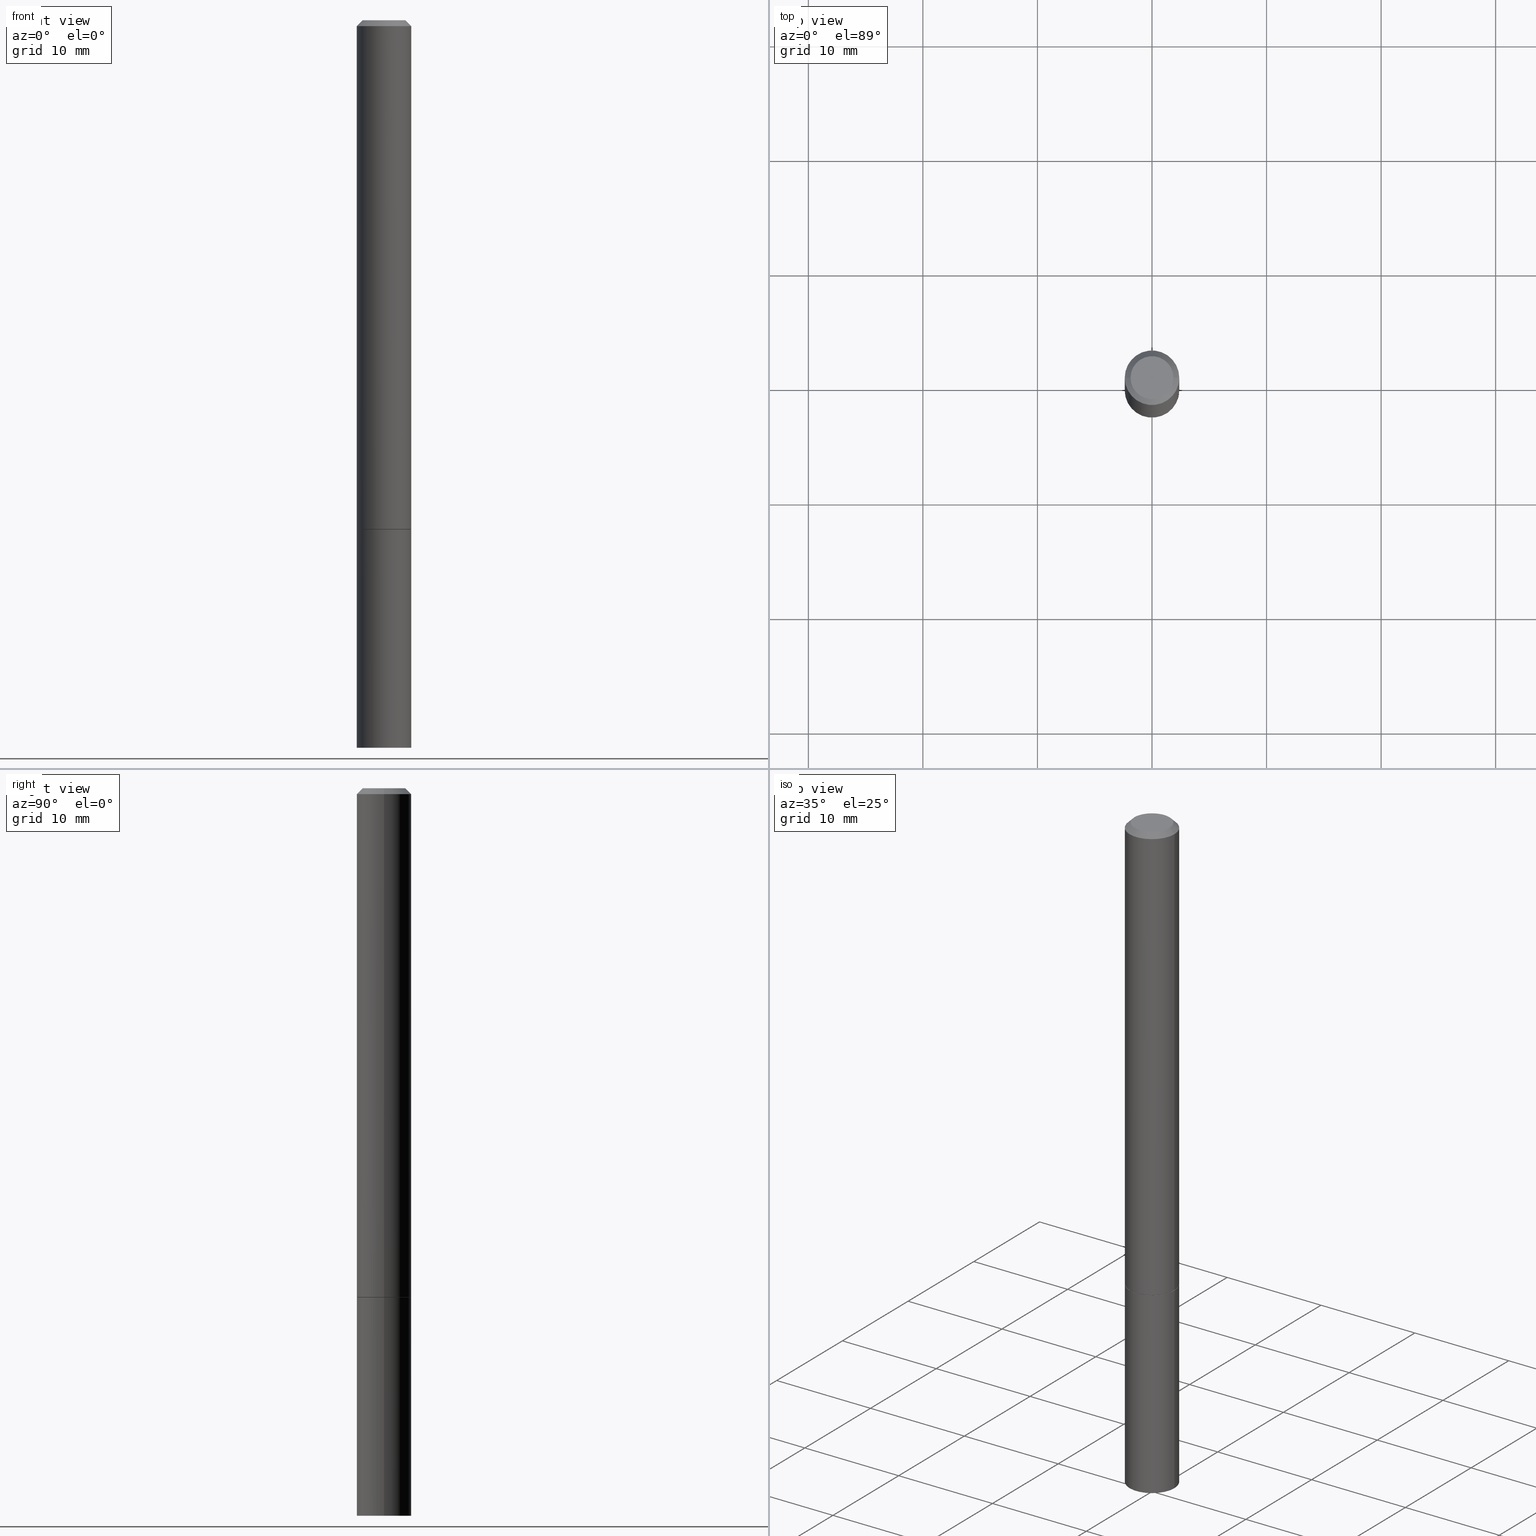
[diagram: canonical four-view strip — front | top / right | iso, engineering-drawing reading convention]
A machine part, canonical four-view strip (front | top / right | iso — engineering-drawing reading convention). The complete STEP part file that produces these views, byte-faithful:
ISO-10303-21;
HEADER;
FILE_DESCRIPTION (( 'STEP AP203' ),
    '1' );
FILE_NAME ('70472.STEP',
    '2024-02-29T02:25:45',
    ( '' ),
    ( '' ),
    'SwSTEP 2.0',
    'SolidWorks 2023',
    '' );
FILE_SCHEMA (( 'CONFIG_CONTROL_DESIGN' ));
ENDSEC;

DATA;
#1 = CARTESIAN_POINT ( 'NONE',  ( 0.09375000000000001388, -6.764745094008592175E-15, -1.750000000000000222 ) ) ;
#2 = FACE_OUTER_BOUND ( 'NONE', #3, .T. ) ;
#3 = EDGE_LOOP ( 'NONE', ( #201, #286, #263, #129 ) ) ;
#4 = COORDINATED_UNIVERSAL_TIME_OFFSET ( 5, 0, .BEHIND. ) ;
#5 = AXIS2_PLACEMENT_3D ( 'NONE', #363, #89, #87 ) ;
#6 = APPLICATION_PROTOCOL_DEFINITION ( 'international standard', 'config_control_design', 1994, #339 ) ;
#7 = CC_DESIGN_DATE_AND_TIME_ASSIGNMENT ( #328, #271, ( #164 ) ) ;
#8 = DATE_TIME_ROLE ( 'creation_date' ) ;
#9 = EDGE_CURVE ( 'NONE', #202, #32, #104, .T. ) ;
#10 = AXIS2_PLACEMENT_3D ( 'NONE', #168, #224, #234 ) ;
#11 = PLANE ( 'NONE',  #264 ) ;
#12 = EDGE_CURVE ( 'NONE', #248, #281, #296, .T. ) ;
#13 = ORIENTED_EDGE ( 'NONE', *, *, #36, .F. ) ;
#14 = EDGE_LOOP ( 'NONE', ( #166, #53 ) ) ;
#15 = LINE ( 'NONE', #103, #119 ) ;
#16 = DATE_AND_TIME ( #102, #30 ) ;
#17 = ORIENTED_EDGE ( 'NONE', *, *, #9, .T. ) ;
#18 = CALENDAR_DATE ( 2024, 28, 2 ) ;
#19 = DIRECTION ( 'NONE',  ( 2.438088387897960049E-29, -3.491481338843145188E-15, -1.000000000000000000 ) ) ;
#20 = AXIS2_PLACEMENT_3D ( 'NONE', #77, #276, #109 ) ;
#21 = AXIS2_PLACEMENT_3D ( 'NONE', #189, #51, #227 ) ;
#22 = CC_DESIGN_DATE_AND_TIME_ASSIGNMENT ( #146, #8, ( #282 ) ) ;
#23 = CYLINDRICAL_SURFACE ( 'NONE', #21, 0.09374999999999988898 ) ;
#24 = CARTESIAN_POINT ( 'NONE',  ( -1.043851414335219820E-46, 1.490343170380447200E-32, 4.268512490100411279E-18 ) ) ;
#25 = DIRECTION ( 'NONE',  ( -2.445468806185136597E-29, 3.491481338843145583E-15, 1.000000000000000000 ) ) ;
#26 = ORIENTED_EDGE ( 'NONE', *, *, #222, .T. ) ;
#27 = CARTESIAN_POINT ( 'NONE',  ( 0.09274999999999999911, -6.757762131330906950E-15, -1.750000000000000222 ) ) ;
#28 = CARTESIAN_POINT ( 'NONE',  ( -0.09375000000000001388, -6.753264030266591277E-15, -1.750000000000000222 ) ) ;
#29 = CLOSED_SHELL ( 'NONE', ( #229, #100, #176, #214, #107, #219, #105, #364 ) ) ;
#30 = LOCAL_TIME ( 21, 25, 45.00000000000000000, #274 ) ;
#31 = FACE_OUTER_BOUND ( 'NONE', #358, .T. ) ;
#32 = VERTEX_POINT ( 'NONE', #247 ) ;
#33 = LOCAL_TIME ( 21, 25, 45.00000000000000000, #149 ) ;
#34 = APPROVAL_ROLE ( '' ) ;
#35 = PRODUCT_RELATED_PRODUCT_CATEGORY ( 'detail', '', ( #240 ) ) ;
#36 = EDGE_CURVE ( 'NONE', #157, #101, #15, .T. ) ;
#37 = AXIS2_PLACEMENT_3D ( 'NONE', #41, #133, #218 ) ;
#38 = CIRCLE ( 'NONE', #10, 0.07374999999999982958 ) ;
#39 = EDGE_LOOP ( 'NONE', ( #220, #250, #61, #162 ) ) ;
#40 = DIRECTION ( 'NONE',  ( -2.445468806185136877E-29, 3.491481338843145188E-15, 1.000000000000000000 ) ) ;
#41 = CARTESIAN_POINT ( 'NONE',  ( 6.546527510331486408E-16, 0.09374999999999128475, -2.500000000000000444 ) ) ;
#42 = ADVANCED_FACE ( 'NONE', ( #297 ), #187, .F. ) ;
#43 = PERSON ( 'UNSPECIFIED', 'UNSPECIFIED', 'UNSPECIFIED', ('UNSPECIFIED'), ('UNSPECIFIED'), ('UNSPECIFIED') ) ;
#44 = AXIS2_PLACEMENT_3D ( 'NONE', #308, #257, #258 ) ;
#45 = COORDINATED_UNIVERSAL_TIME_OFFSET ( 5, 0, .BEHIND. ) ;
#46 = DIRECTION ( 'NONE',  ( -2.445468806185136877E-29, 3.491481338843145188E-15, 1.000000000000000000 ) ) ;
#47 = EDGE_LOOP ( 'NONE', ( #260, #140 ) ) ;
#48 = ADVANCED_FACE ( 'NONE', ( #355 ), #183, .T. ) ;
#49 = AXIS2_PLACEMENT_3D ( 'NONE', #106, #301, #212 ) ;
#50 = CIRCLE ( 'NONE', #298, 0.09274999999999999911 ) ;
#51 = DIRECTION ( 'NONE',  ( -2.445468806185136597E-29, 3.491481338843145583E-15, 1.000000000000000000 ) ) ;
#52 = CYLINDRICAL_SURFACE ( 'NONE', #5, 0.09375000000000001388 ) ;
#53 = ORIENTED_EDGE ( 'NONE', *, *, #167, .F. ) ;
#54 = FACE_OUTER_BOUND ( 'NONE', #306, .T. ) ;
#55 = ORIENTED_EDGE ( 'NONE', *, *, #75, .T. ) ;
#56 = EDGE_CURVE ( 'NONE', #248, #204, #90, .T. ) ;
#57 = DIRECTION ( 'NONE',  ( -2.445468806185136597E-29, 3.491481338843145583E-15, 1.000000000000000000 ) ) ;
#58 = DIRECTION ( 'NONE',  ( 1.000000000000000000, -6.982962677686273021E-15, 0.000000000000000000 ) ) ;
#59 = CARTESIAN_POINT ( 'NONE',  ( -0.09374999999999979183, 5.848231242562231212E-16, -0.02000000000000000736 ) ) ;
#60 = CIRCLE ( 'NONE', #361, 0.09374999999999979183 ) ;
#61 = ORIENTED_EDGE ( 'NONE', *, *, #188, .T. ) ;
#62 = DIRECTION ( 'NONE',  ( -1.000000000000000000, 6.982962677686266711E-15, 0.000000000000000000 ) ) ;
#63 = PERSON_AND_ORGANIZATION ( #43, #191 ) ;
#64 = APPROVAL_DATE_TIME ( #68, #333 ) ;
#65 = CIRCLE ( 'NONE', #318, 0.09375000000000001388 ) ;
#66 = DIRECTION ( 'NONE',  ( 0.000000000000000000, 0.000000000000000000, 1.000000000000000000 ) ) ;
#67 = APPROVAL ( #150, 'UNSPECIFIED' ) ;
#68 = DATE_AND_TIME ( #124, #332 ) ;
#69 = CARTESIAN_POINT ( 'NONE',  ( 0.09374999999999979183, -7.130013140679426072E-16, -0.02000000000000000736 ) ) ;
#70 = CIRCLE ( 'NONE', #253, 0.09375000000000001388 ) ;
#71 = EDGE_LOOP ( 'NONE', ( #26, #359, #169, #215 ) ) ;
#72 = UNCERTAINTY_MEASURE_WITH_UNIT (LENGTH_MEASURE( 1.000000000000000082E-05 ), #99, 'distance_accuracy_value', 'NONE');
#73 = CARTESIAN_POINT ( 'NONE',  ( 6.546527510331302998E-16, 0.09374999999999389377, -1.750000000000000444 ) ) ;
#74 = CARTESIAN_POINT ( 'NONE',  ( -0.09374999999999988898, 6.661338147750931354E-16, -4.611501647113968390E-30 ) ) ;
#75 = EDGE_CURVE ( 'NONE', #281, #252, #322, .T. ) ;
#76 = CIRCLE ( 'NONE', #352, 0.09374999999999979183 ) ;
#77 = CARTESIAN_POINT ( 'NONE',  ( 6.113672015462842613E-29, -8.728703347107864943E-15, -2.500000000000000000 ) ) ;
#78 = DIRECTION ( 'NONE',  ( 1.000000000000000000, -6.982962677686265922E-15, 4.876176775795935793E-29 ) ) ;
#79 = CC_DESIGN_PERSON_AND_ORGANIZATION_ASSIGNMENT ( #326, #217, ( #121 ) ) ;
#80 = DIRECTION ( 'NONE',  ( -2.438088387897960049E-29, 3.491481338843145188E-15, 1.000000000000000000 ) ) ;
#81 = CARTESIAN_POINT ( 'NONE',  ( 0.07374999999999982958, -6.094815207017959226E-16, 4.268512490104342487E-18 ) ) ;
#82 = CARTESIAN_POINT ( 'NONE',  ( 4.890937612370274910E-31, -6.982962677686295307E-17, -0.02000000000000000736 ) ) ;
#83 = CC_DESIGN_APPROVAL ( #333, ( #121 ) ) ;
#84 = EDGE_CURVE ( 'NONE', #204, #252, #221, .T. ) ;
#85 = EDGE_LOOP ( 'NONE', ( #55, #122 ) ) ;
#86 = DIRECTION ( 'NONE',  ( 1.000000000000000000, -6.982962677686266711E-15, 4.875869617646596737E-29 ) ) ;
#87 = DIRECTION ( 'NONE',  ( 1.000000000000000000, -6.982962677686265922E-15, 4.876176775795935793E-29 ) ) ;
#88 = CARTESIAN_POINT ( 'NONE',  ( 4.279570410823989044E-29, -6.110092342975505460E-15, -1.750000000000000222 ) ) ;
#89 = DIRECTION ( 'NONE',  ( -2.445468806185136597E-29, 3.491481338843145583E-15, 1.000000000000000000 ) ) ;
#90 = CIRCLE ( 'NONE', #20, 0.09375000000000001388 ) ;
#91 = CARTESIAN_POINT ( 'NONE',  ( 4.890937612370274910E-31, -6.982962677686295307E-17, -0.02000000000000000736 ) ) ;
#92 = AXIS2_PLACEMENT_3D ( 'NONE', #342, #346, #58 ) ;
#93 = ORIENTED_EDGE ( 'NONE', *, *, #9, .F. ) ;
#94 = APPROVAL_ROLE ( '' ) ;
#95 = COORDINATED_UNIVERSAL_TIME_OFFSET ( 5, 0, .BEHIND. ) ;
#96 = DIMENSIONAL_EXPONENTS ( 1.000000000000000000, 0.000000000000000000, 0.000000000000000000, 0.000000000000000000, 0.000000000000000000, 0.000000000000000000, 0.000000000000000000 ) ;
#97 = EDGE_CURVE ( 'NONE', #32, #193, #180, .T. ) ;
#98 =( GEOMETRIC_REPRESENTATION_CONTEXT ( 3 ) GLOBAL_UNCERTAINTY_ASSIGNED_CONTEXT ( ( #72 ) ) GLOBAL_UNIT_ASSIGNED_CONTEXT ( ( #99, #205, #353 ) ) REPRESENTATION_CONTEXT ( 'NONE', 'WORKASPACE' ) );
#99 =( CONVERSION_BASED_UNIT ( 'INCH', #123 ) LENGTH_UNIT ( ) NAMED_UNIT ( #96 ) );
#100 = ADVANCED_FACE ( 'NONE', ( #325 ), #294, .T. ) ;
#101 = VERTEX_POINT ( 'NONE', #156 ) ;
#102 = CALENDAR_DATE ( 2024, 28, 2 ) ;
#103 = CARTESIAN_POINT ( 'NONE',  ( 0.09274999999999999911, -6.757762131330906950E-15, -1.750000000000000222 ) ) ;
#104 = LINE ( 'NONE', #327, #304 ) ;
#105 = ADVANCED_FACE ( 'NONE', ( #110 ), #114, .F. ) ;
#106 = CARTESIAN_POINT ( 'NONE',  ( 4.279570410823989044E-29, -6.110092342975505460E-15, -1.750000000000000222 ) ) ;
#107 = ADVANCED_FACE ( 'NONE', ( #337 ), #23, .T. ) ;
#108 = AXIS2_PLACEMENT_3D ( 'NONE', #138, #313, #62 ) ;
#109 = DIRECTION ( 'NONE',  ( 1.000000000000000000, -6.982962677686272233E-15, 0.000000000000000000 ) ) ;
#110 = FACE_OUTER_BOUND ( 'NONE', #47, .T. ) ;
#111 = CARTESIAN_POINT ( 'NONE',  ( 4.279570410823989044E-29, -6.110092342975505460E-15, -1.750000000000000222 ) ) ;
#112 = DIRECTION ( 'NONE',  ( 1.000000000000000000, -6.982962677686266711E-15, 0.000000000000000000 ) ) ;
#113 = ORIENTED_EDGE ( 'NONE', *, *, #12, .T. ) ;
#114 = PLANE ( 'NONE',  #323 ) ;
#115 = CARTESIAN_POINT ( 'NONE',  ( -0.09375000000000001388, -6.753264030266591277E-15, -2.500000000000000000 ) ) ;
#116 = ORIENTED_EDGE ( 'NONE', *, *, #167, .T. ) ;
#117 = LINE ( 'NONE', #137, #278 ) ;
#118 = DIRECTION ( 'NONE',  ( 1.000000000000000000, -6.982962677686261189E-15, 0.000000000000000000 ) ) ;
#119 = VECTOR ( 'NONE', #135, 39.37007874015748854 ) ;
#120 = CALENDAR_DATE ( 2024, 28, 2 ) ;
#121 = PRODUCT_DEFINITION_FORMATION_WITH_SPECIFIED_SOURCE ( 'ANY', '', #240, .NOT_KNOWN. ) ;
#122 = ORIENTED_EDGE ( 'NONE', *, *, #155, .T. ) ;
#123 = LENGTH_MEASURE_WITH_UNIT ( LENGTH_MEASURE( 0.02539999999999999897 ), #321 );
#124 = CALENDAR_DATE ( 2024, 28, 2 ) ;
#125 = ORIENTED_EDGE ( 'NONE', *, *, #178, .T. ) ;
#126 = AXIS2_PLACEMENT_3D ( 'NONE', #134, #295, #269 ) ;
#127 = CIRCLE ( 'NONE', #338, 0.09375000000000001388 ) ;
#128 = APPROVAL_PERSON_ORGANIZATION ( #161, #207, #245 ) ;
#129 = ORIENTED_EDGE ( 'NONE', *, *, #209, .T. ) ;
#130 = ORIENTED_EDGE ( 'NONE', *, *, #36, .T. ) ;
#131 = CC_DESIGN_APPROVAL ( #67, ( #282 ) ) ;
#132 = EDGE_CURVE ( 'NONE', #181, #366, #117, .T. ) ;
#133 = DIRECTION ( 'NONE',  ( 2.438088387897960049E-29, -3.491481338843145188E-15, -1.000000000000000000 ) ) ;
#134 = CARTESIAN_POINT ( 'NONE',  ( 0.000000000000000000, 0.000000000000000000, 0.000000000000000000 ) ) ;
#135 = DIRECTION ( 'NONE',  ( 0.7071067811865232589, -2.468850131082003836E-15, 0.7071067811865715536 ) ) ;
#136 = CIRCLE ( 'NONE', #44, 0.09274999999999999911 ) ;
#137 = CARTESIAN_POINT ( 'NONE',  ( 0.09374999999999979183, -7.130013140679426072E-16, -0.02000000000000000736 ) ) ;
#138 = CARTESIAN_POINT ( 'NONE',  ( 4.890937612370274910E-31, -6.982962677686295307E-17, -0.02000000000000000736 ) ) ;
#139 = DIRECTION ( 'NONE',  ( 2.445468806185136597E-29, -3.491481338843145583E-15, -1.000000000000000000 ) ) ;
#140 = ORIENTED_EDGE ( 'NONE', *, *, #291, .F. ) ;
#141 = CIRCLE ( 'NONE', #249, 0.07374999999999982958 ) ;
#142 = CARTESIAN_POINT ( 'NONE',  ( -0.07374999999999982958, 5.499083108677920638E-16, 4.268512490096688071E-18 ) ) ;
#143 = CARTESIAN_POINT ( 'NONE',  ( 4.890937612370274910E-31, -6.982962677686295307E-17, -0.02000000000000000736 ) ) ;
#144 = CC_DESIGN_PERSON_AND_ORGANIZATION_ASSIGNMENT ( #241, #239, ( #282 ) ) ;
#145 = VECTOR ( 'NONE', #40, 39.37007874015748143 ) ;
#146 = DATE_AND_TIME ( #120, #256 ) ;
#147 = EDGE_CURVE ( 'NONE', #181, #270, #141, .T. ) ;
#148 = CARTESIAN_POINT ( 'NONE',  ( 0.09374999999999988898, -6.546527510330866166E-16, 4.571415727308684201E-30 ) ) ;
#149 = COORDINATED_UNIVERSAL_TIME_OFFSET ( 5, 0, .BEHIND. ) ;
#150 = APPROVAL_STATUS ( 'not_yet_approved' ) ;
#151 = AXIS2_PLACEMENT_3D ( 'NONE', #73, #19, #154 ) ;
#152 = MANIFOLD_SOLID_BREP ( 'Body-Move/Copy2[1]', #179 ) ;
#153 = APPROVAL_STATUS ( 'not_yet_approved' ) ;
#154 = DIRECTION ( 'NONE',  ( -1.000000000000000000, 6.982962677686265922E-15, -4.876176775795935793E-29 ) ) ;
#155 = EDGE_CURVE ( 'NONE', #252, #281, #65, .T. ) ;
#156 = CARTESIAN_POINT ( 'NONE',  ( 0.09375000000000001388, -6.761253612669749168E-15, -1.749000000000000110 ) ) ;
#157 = VERTEX_POINT ( 'NONE', #27 ) ;
#158 = CONICAL_SURFACE ( 'NONE', #92, 0.09274999999999999911, 0.7853981633974141952 ) ;
#159 = EDGE_CURVE ( 'NONE', #101, #366, #343, .T. ) ;
#160 = CARTESIAN_POINT ( 'NONE',  ( 6.113672015462842613E-29, -8.728703347107864943E-15, -2.500000000000000000 ) ) ;
#161 = PERSON_AND_ORGANIZATION ( #43, #191 ) ;
#162 = ORIENTED_EDGE ( 'NONE', *, *, #317, .F. ) ;
#163 = ORIENTED_EDGE ( 'NONE', *, *, #209, .F. ) ;
#164 = SECURITY_CLASSIFICATION ( '', '', #300 ) ;
#165 = CARTESIAN_POINT ( 'NONE',  ( 0.000000000000000000, 0.000000000000000000, 0.000000000000000000 ) ) ;
#166 = ORIENTED_EDGE ( 'NONE', *, *, #56, .F. ) ;
#167 = EDGE_CURVE ( 'NONE', #204, #248, #127, .T. ) ;
#168 = CARTESIAN_POINT ( 'NONE',  ( -1.043851414335219820E-46, 1.490343170380447200E-32, 4.268512490100411279E-18 ) ) ;
#169 = ORIENTED_EDGE ( 'NONE', *, *, #188, .F. ) ;
#170 = EDGE_CURVE ( 'NONE', #270, #181, #38, .T. ) ;
#171 = FACE_OUTER_BOUND ( 'NONE', #320, .T. ) ;
#172 = ORIENTED_EDGE ( 'NONE', *, *, #155, .F. ) ;
#173 = CC_DESIGN_PERSON_AND_ORGANIZATION_ASSIGNMENT ( #211, #182, ( #164 ) ) ;
#174 = DIRECTION ( 'NONE',  ( 1.000000000000000000, -6.982962677686261189E-15, 0.000000000000000000 ) ) ;
#175 = APPLICATION_PROTOCOL_DEFINITION ( 'international standard', 'config_control_design', 1994, #303 ) ;
#176 = ADVANCED_FACE ( 'NONE', ( #232 ), #348, .T. ) ;
#177 = PERSON_AND_ORGANIZATION ( #43, #191 ) ;
#178 = EDGE_CURVE ( 'NONE', #157, #202, #136, .T. ) ;
#179 = CLOSED_SHELL ( 'NONE', ( #242, #48, #42, #259 ) ) ;
#180 = LINE ( 'NONE', #74, #331 ) ;
#181 = VERTEX_POINT ( 'NONE', #81 ) ;
#182 = PERSON_AND_ORGANIZATION_ROLE ( 'classification_officer' ) ;
#183 = PLANE ( 'NONE',  #37 ) ;
#184 = ORIENTED_EDGE ( 'NONE', *, *, #84, .F. ) ;
#185 = EDGE_CURVE ( 'NONE', #32, #101, #186, .T. ) ;
#186 = CIRCLE ( 'NONE', #305, 0.09375000000000001388 ) ;
#187 = PLANE ( 'NONE',  #151 ) ;
#188 = EDGE_CURVE ( 'NONE', #366, #193, #60, .T. ) ;
#189 = CARTESIAN_POINT ( 'NONE',  ( 0.000000000000000000, 0.000000000000000000, 0.000000000000000000 ) ) ;
#190 = CYLINDRICAL_SURFACE ( 'NONE', #213, 0.09375000000000001388 ) ;
#191 = ORGANIZATION ( 'UNSPECIFIED', 'UNSPECIFIED', '' ) ;
#192 = DIRECTION ( 'NONE',  ( -1.000000000000000000, 6.982962677686266711E-15, 0.000000000000000000 ) ) ;
#193 = VERTEX_POINT ( 'NONE', #59 ) ;
#194 = FACE_OUTER_BOUND ( 'NONE', #235, .T. ) ;
#195 = ORIENTED_EDGE ( 'NONE', *, *, #75, .F. ) ;
#196 = CC_DESIGN_PERSON_AND_ORGANIZATION_ASSIGNMENT ( #63, #208, ( #240 ) ) ;
#197 = CARTESIAN_POINT ( 'NONE',  ( 4.279570410823989044E-29, -6.110092342975505460E-15, -1.750000000000000222 ) ) ;
#198 = AXIS2_PLACEMENT_3D ( 'NONE', #111, #25, #228 ) ;
#199 = DIRECTION ( 'NONE',  ( -2.445468806185136597E-29, 3.491481338843145583E-15, 1.000000000000000000 ) ) ;
#200 = ORIENTED_EDGE ( 'NONE', *, *, #222, .F. ) ;
#201 = ORIENTED_EDGE ( 'NONE', *, *, #132, .F. ) ;
#202 = VERTEX_POINT ( 'NONE', #254 ) ;
#203 = CARTESIAN_POINT ( 'NONE',  ( 5.149934974793609077E-16, 0.07374999999999982958, -2.553624924946311773E-16 ) ) ;
#204 = VERTEX_POINT ( 'NONE', #115 ) ;
#205 =( NAMED_UNIT ( * ) PLANE_ANGLE_UNIT ( ) SI_UNIT ( $, .RADIAN. ) );
#206 = APPROVAL_PERSON_ORGANIZATION ( #288, #67, #34 ) ;
#207 = APPROVAL ( #153, 'UNSPECIFIED' ) ;
#208 = PERSON_AND_ORGANIZATION_ROLE ( 'design_owner' ) ;
#209 = EDGE_CURVE ( 'NONE', #193, #366, #76, .T. ) ;
#210 = DATE_AND_TIME ( #261, #33 ) ;
#211 = PERSON_AND_ORGANIZATION ( #43, #191 ) ;
#212 = DIRECTION ( 'NONE',  ( 1.000000000000000000, -6.982962677686261189E-15, 0.000000000000000000 ) ) ;
#213 = AXIS2_PLACEMENT_3D ( 'NONE', #165, #279, #255 ) ;
#214 = ADVANCED_FACE ( 'NONE', ( #2 ), #226, .T. ) ;
#215 = ORIENTED_EDGE ( 'NONE', *, *, #159, .F. ) ;
#216 = DIRECTION ( 'NONE',  ( 1.000000000000000000, -6.982962677686272233E-15, 0.000000000000000000 ) ) ;
#217 = PERSON_AND_ORGANIZATION_ROLE ( 'design_supplier' ) ;
#218 = DIRECTION ( 'NONE',  ( -1.000000000000000000, 6.982962677686265922E-15, -4.876176775795935793E-29 ) ) ;
#219 = ADVANCED_FACE ( 'NONE', ( #171 ), #356, .T. ) ;
#220 = ORIENTED_EDGE ( 'NONE', *, *, #147, .F. ) ;
#221 = LINE ( 'NONE', #329, #145 ) ;
#222 = EDGE_CURVE ( 'NONE', #101, #32, #70, .T. ) ;
#223 = CARTESIAN_POINT ( 'NONE',  ( 4.277124942017804562E-29, -6.106600861636661664E-15, -1.749000000000000110 ) ) ;
#224 = DIRECTION ( 'NONE',  ( -2.445468806185136597E-29, 3.491481338843145583E-15, 1.000000000000000000 ) ) ;
#225 = ORIENTED_EDGE ( 'NONE', *, *, #12, .F. ) ;
#226 = CONICAL_SURFACE ( 'NONE', #108, 0.09374999999999979183, 0.7853981633974469467 ) ;
#227 = DIRECTION ( 'NONE',  ( 1.000000000000000000, -6.982962677686265133E-15, 4.876176775795935793E-29 ) ) ;
#228 = DIRECTION ( 'NONE',  ( 1.000000000000000000, -6.982962677686273021E-15, 0.000000000000000000 ) ) ;
#229 = ADVANCED_FACE ( 'NONE', ( #54 ), #158, .T. ) ;
#230 = ORIENTED_EDGE ( 'NONE', *, *, #159, .T. ) ;
#231 = DIRECTION ( 'NONE',  ( 0.7071067811865465735, -7.319954787623252890E-15, -0.7071067811865484609 ) ) ;
#232 = FACE_OUTER_BOUND ( 'NONE', #39, .T. ) ;
#233 = CARTESIAN_POINT ( 'NONE',  ( 4.279570410823989044E-29, -6.110092342975505460E-15, -1.750000000000000222 ) ) ;
#234 = DIRECTION ( 'NONE',  ( 1.000000000000000000, -6.982962677686266711E-15, 4.875869617646596737E-29 ) ) ;
#235 = EDGE_LOOP ( 'NONE', ( #184, #116, #113, #172 ) ) ;
#236 = VECTOR ( 'NONE', #345, 39.37007874015748143 ) ;
#237 = CC_DESIGN_SECURITY_CLASSIFICATION ( #164, ( #121 ) ) ;
#238 = DIRECTION ( 'NONE',  ( 1.000000000000000000, -6.982962677686273021E-15, 0.000000000000000000 ) ) ;
#239 = PERSON_AND_ORGANIZATION_ROLE ( 'creator' ) ;
#240 = PRODUCT ( '70472', '70472', '', ( #293 ) ) ;
#241 = PERSON_AND_ORGANIZATION ( #43, #191 ) ;
#242 = ADVANCED_FACE ( 'NONE', ( #31 ), #52, .T. ) ;
#243 = FACE_OUTER_BOUND ( 'NONE', #340, .T. ) ;
#244 = LINE ( 'NONE', #316, #292 ) ;
#245 = APPROVAL_ROLE ( '' ) ;
#246 = PRODUCT_DEFINITION_SHAPE ( 'NONE', 'NONE',  #282 ) ;
#247 = CARTESIAN_POINT ( 'NONE',  ( -0.09375000000000001388, -2.422081429431664218E-15, -1.749000000000000110 ) ) ;
#248 = VERTEX_POINT ( 'NONE', #335 ) ;
#249 = AXIS2_PLACEMENT_3D ( 'NONE', #24, #341, #86 ) ;
#250 = ORIENTED_EDGE ( 'NONE', *, *, #132, .T. ) ;
#251 = ORIENTED_EDGE ( 'NONE', *, *, #97, .F. ) ;
#252 = VERTEX_POINT ( 'NONE', #28 ) ;
#253 = AXIS2_PLACEMENT_3D ( 'NONE', #287, #307, #118 ) ;
#254 = CARTESIAN_POINT ( 'NONE',  ( -0.09274999999999999911, -5.445765501209790142E-15, -1.750000000000000222 ) ) ;
#255 = DIRECTION ( 'NONE',  ( 1.000000000000000000, -6.982962677686265922E-15, 4.876176775795935793E-29 ) ) ;
#256 = LOCAL_TIME ( 21, 25, 45.00000000000000000, #4 ) ;
#257 = DIRECTION ( 'NONE',  ( -2.445468806185136597E-29, 3.491481338843145583E-15, 1.000000000000000000 ) ) ;
#258 = DIRECTION ( 'NONE',  ( 1.000000000000000000, -6.982962677686273021E-15, 0.000000000000000000 ) ) ;
#259 = ADVANCED_FACE ( 'NONE', ( #194 ), #190, .T. ) ;
#260 = ORIENTED_EDGE ( 'NONE', *, *, #178, .F. ) ;
#261 = CALENDAR_DATE ( 2024, 28, 2 ) ;
#262 = ORIENTED_EDGE ( 'NONE', *, *, #185, .F. ) ;
#263 = ORIENTED_EDGE ( 'NONE', *, *, #317, .T. ) ;
#264 = AXIS2_PLACEMENT_3D ( 'NONE', #203, #351, #319 ) ;
#265 = PERSON_AND_ORGANIZATION ( #43, #191 ) ;
#266 = CARTESIAN_POINT ( 'NONE',  ( 0.000000000000000000, 0.000000000000000000, 0.000000000000000000 ) ) ;
#267 = APPROVAL_DATE_TIME ( #210, #67 ) ;
#268 = DIRECTION ( 'NONE',  ( 1.000000000000000000, 0.000000000000000000, 0.000000000000000000 ) ) ;
#269 = DIRECTION ( 'NONE',  ( 1.000000000000000000, -6.982962677686265133E-15, 4.876176775795935793E-29 ) ) ;
#270 = VERTEX_POINT ( 'NONE', #142 ) ;
#271 = DATE_TIME_ROLE ( 'classification_date' ) ;
#272 = DIRECTION ( 'NONE',  ( -2.445468806185136877E-29, 3.491481338843145188E-15, 1.000000000000000000 ) ) ;
#273 = AXIS2_PLACEMENT_3D ( 'NONE', #266, #66, #268 ) ;
#274 = COORDINATED_UNIVERSAL_TIME_OFFSET ( 5, 0, .BEHIND. ) ;
#275 = DIRECTION ( 'NONE',  ( -0.7071067811865232589, 7.493145998870265808E-15, 0.7071067811865715536 ) ) ;
#276 = DIRECTION ( 'NONE',  ( -2.445468806185136597E-29, 3.491481338843145583E-15, 1.000000000000000000 ) ) ;
#277 = MANIFOLD_SOLID_BREP ( 'Body-Move/Copy2[2]', #29 ) ;
#278 = VECTOR ( 'NONE', #231, 39.37007874015748143 ) ;
#279 = DIRECTION ( 'NONE',  ( -2.445468806185136597E-29, 3.491481338843145583E-15, 1.000000000000000000 ) ) ;
#280 = DIRECTION ( 'NONE',  ( 1.000000000000000000, -6.982962677686266711E-15, 0.000000000000000000 ) ) ;
#281 = VERTEX_POINT ( 'NONE', #1 ) ;
#282 = PRODUCT_DEFINITION ( 'UNKNOWN', '', #121, #349 ) ;
#283 = DIRECTION ( 'NONE',  ( 1.000000000000000000, -6.982962677686261189E-15, 0.000000000000000000 ) ) ;
#284 = DIRECTION ( 'NONE',  ( -2.445468806185136597E-29, 3.491481338843145583E-15, 1.000000000000000000 ) ) ;
#285 = ORIENTED_EDGE ( 'NONE', *, *, #291, .T. ) ;
#286 = ORIENTED_EDGE ( 'NONE', *, *, #170, .F. ) ;
#287 = CARTESIAN_POINT ( 'NONE',  ( 4.277124942017804562E-29, -6.106600861636661664E-15, -1.749000000000000110 ) ) ;
#288 = PERSON_AND_ORGANIZATION ( #43, #191 ) ;
#289 = CC_DESIGN_APPROVAL ( #207, ( #164 ) ) ;
#290 = PERSON_AND_ORGANIZATION_ROLE ( 'creator' ) ;
#291 = EDGE_CURVE ( 'NONE', #202, #157, #50, .T. ) ;
#292 = VECTOR ( 'NONE', #315, 39.37007874015748143 ) ;
#293 = MECHANICAL_CONTEXT ( 'NONE', #339, 'mechanical' ) ;
#294 = CYLINDRICAL_SURFACE ( 'NONE', #126, 0.09374999999999988898 ) ;
#295 = DIRECTION ( 'NONE',  ( -2.445468806185136597E-29, 3.491481338843145583E-15, 1.000000000000000000 ) ) ;
#296 = LINE ( 'NONE', #334, #311 ) ;
#297 = FACE_OUTER_BOUND ( 'NONE', #85, .T. ) ;
#298 = AXIS2_PLACEMENT_3D ( 'NONE', #197, #310, #238 ) ;
#299 = APPROVAL_PERSON_ORGANIZATION ( #265, #333, #94 ) ;
#300 = SECURITY_CLASSIFICATION_LEVEL ( 'unclassified' ) ;
#301 = DIRECTION ( 'NONE',  ( -2.445468806185136597E-29, 3.491481338843145583E-15, 1.000000000000000000 ) ) ;
#302 = CC_DESIGN_PERSON_AND_ORGANIZATION_ASSIGNMENT ( #177, #290, ( #121 ) ) ;
#303 = APPLICATION_CONTEXT ( 'configuration controlled 3d designs of mechanical parts and assemblies' ) ;
#304 = VECTOR ( 'NONE', #275, 39.37007874015748854 ) ;
#305 = AXIS2_PLACEMENT_3D ( 'NONE', #223, #199, #174 ) ;
#306 = EDGE_LOOP ( 'NONE', ( #125, #17, #200, #13 ) ) ;
#307 = DIRECTION ( 'NONE',  ( -2.445468806185136597E-29, 3.491481338843145583E-15, 1.000000000000000000 ) ) ;
#308 = CARTESIAN_POINT ( 'NONE',  ( 4.279570410823989044E-29, -6.110092342975505460E-15, -1.750000000000000222 ) ) ;
#309 = ORIENTED_EDGE ( 'NONE', *, *, #56, .T. ) ;
#310 = DIRECTION ( 'NONE',  ( -2.445468806185136597E-29, 3.491481338843145583E-15, 1.000000000000000000 ) ) ;
#311 = VECTOR ( 'NONE', #272, 39.37007874015748143 ) ;
#312 = AXIS2_PLACEMENT_3D ( 'NONE', #143, #139, #192 ) ;
#313 = DIRECTION ( 'NONE',  ( 2.445468806185136597E-29, -3.491481338843145583E-15, -1.000000000000000000 ) ) ;
#314 = DIRECTION ( 'NONE',  ( -2.445468806185136597E-29, 3.491481338843145583E-15, 1.000000000000000000 ) ) ;
#315 = DIRECTION ( 'NONE',  ( -0.7071067811865465735, 2.468850131082246805E-15, -0.7071067811865484609 ) ) ;
#316 = CARTESIAN_POINT ( 'NONE',  ( -0.09374999999999979183, 5.848231242562231212E-16, -0.02000000000000000736 ) ) ;
#317 = EDGE_CURVE ( 'NONE', #270, #193, #244, .T. ) ;
#318 = AXIS2_PLACEMENT_3D ( 'NONE', #88, #57, #283 ) ;
#319 = DIRECTION ( 'NONE',  ( -1.000000000000000000, 6.982962677686265922E-15, -4.876176775795935793E-29 ) ) ;
#320 = EDGE_LOOP ( 'NONE', ( #93, #285, #130, #262 ) ) ;
#321 =( LENGTH_UNIT ( ) NAMED_UNIT ( * ) SI_UNIT ( $, .METRE. ) );
#322 = CIRCLE ( 'NONE', #49, 0.09375000000000001388 ) ;
#323 = AXIS2_PLACEMENT_3D ( 'NONE', #233, #80, #78 ) ;
#324 = APPROVAL_DATE_TIME ( #16, #207 ) ;
#325 = FACE_OUTER_BOUND ( 'NONE', #71, .T. ) ;
#326 = PERSON_AND_ORGANIZATION ( #43, #191 ) ;
#327 = CARTESIAN_POINT ( 'NONE',  ( -0.09274999999999999911, -5.451063955558012544E-15, -1.750000000000000222 ) ) ;
#328 = DATE_AND_TIME ( #18, #365 ) ;
#329 = CARTESIAN_POINT ( 'NONE',  ( -0.09375000000000001388, 6.661338147750940229E-16, -4.611501647113973995E-30 ) ) ;
#330 = ORIENTED_EDGE ( 'NONE', *, *, #185, .T. ) ;
#331 = VECTOR ( 'NONE', #46, 39.37007874015748143 ) ;
#332 = LOCAL_TIME ( 21, 25, 45.00000000000000000, #95 ) ;
#333 = APPROVAL ( #350, 'UNSPECIFIED' ) ;
#334 = CARTESIAN_POINT ( 'NONE',  ( 0.09375000000000001388, -6.546527510330875041E-16, 4.571415727308690506E-30 ) ) ;
#335 = CARTESIAN_POINT ( 'NONE',  ( 0.09375000000000001388, -9.383356098140953236E-15, -2.500000000000000000 ) ) ;
#336 = ORIENTED_EDGE ( 'NONE', *, *, #84, .T. ) ;
#337 = FACE_OUTER_BOUND ( 'NONE', #347, .T. ) ;
#338 = AXIS2_PLACEMENT_3D ( 'NONE', #160, #314, #216 ) ;
#339 = APPLICATION_CONTEXT ( 'configuration controlled 3d designs of mechanical parts and assemblies' ) ;
#340 = EDGE_LOOP ( 'NONE', ( #357, #362 ) ) ;
#341 = DIRECTION ( 'NONE',  ( -2.445468806185136597E-29, 3.491481338843145583E-15, 1.000000000000000000 ) ) ;
#342 = CARTESIAN_POINT ( 'NONE',  ( 4.279570410823989044E-29, -6.110092342975505460E-15, -1.750000000000000222 ) ) ;
#343 = LINE ( 'NONE', #148, #236 ) ;
#344 = DIRECTION ( 'NONE',  ( -2.445468806185136597E-29, 3.491481338843145583E-15, 1.000000000000000000 ) ) ;
#345 = DIRECTION ( 'NONE',  ( -2.445468806185136877E-29, 3.491481338843145188E-15, 1.000000000000000000 ) ) ;
#346 = DIRECTION ( 'NONE',  ( -2.445468806185136597E-29, 3.491481338843145583E-15, 1.000000000000000000 ) ) ;
#347 = EDGE_LOOP ( 'NONE', ( #251, #330, #230, #163 ) ) ;
#348 = CONICAL_SURFACE ( 'NONE', #312, 0.09374999999999979183, 0.7853981633974469467 ) ;
#349 = DESIGN_CONTEXT ( 'detailed design', #303, 'design' ) ;
#350 = APPROVAL_STATUS ( 'not_yet_approved' ) ;
#351 = DIRECTION ( 'NONE',  ( 2.438088387897960049E-29, -3.491481338843145188E-15, -1.000000000000000000 ) ) ;
#352 = AXIS2_PLACEMENT_3D ( 'NONE', #82, #284, #280 ) ;
#353 =( NAMED_UNIT ( * ) SI_UNIT ( $, .STERADIAN. ) SOLID_ANGLE_UNIT ( ) );
#354 = ADVANCED_BREP_SHAPE_REPRESENTATION ( '70472', ( #152, #277, #273 ), #98 ) ;
#355 = FACE_OUTER_BOUND ( 'NONE', #14, .T. ) ;
#356 = CONICAL_SURFACE ( 'NONE', #198, 0.09274999999999999911, 0.7853981633974141952 ) ;
#357 = ORIENTED_EDGE ( 'NONE', *, *, #170, .T. ) ;
#358 = EDGE_LOOP ( 'NONE', ( #309, #336, #195, #225 ) ) ;
#359 = ORIENTED_EDGE ( 'NONE', *, *, #97, .T. ) ;
#360 = SHAPE_DEFINITION_REPRESENTATION ( #246, #354 ) ;
#361 = AXIS2_PLACEMENT_3D ( 'NONE', #91, #344, #112 ) ;
#362 = ORIENTED_EDGE ( 'NONE', *, *, #147, .T. ) ;
#363 = CARTESIAN_POINT ( 'NONE',  ( 0.000000000000000000, 0.000000000000000000, 0.000000000000000000 ) ) ;
#364 = ADVANCED_FACE ( 'NONE', ( #243 ), #11, .F. ) ;
#365 = LOCAL_TIME ( 21, 25, 45.00000000000000000, #45 ) ;
#366 = VERTEX_POINT ( 'NONE', #69 ) ;
ENDSEC;
END-ISO-10303-21;
